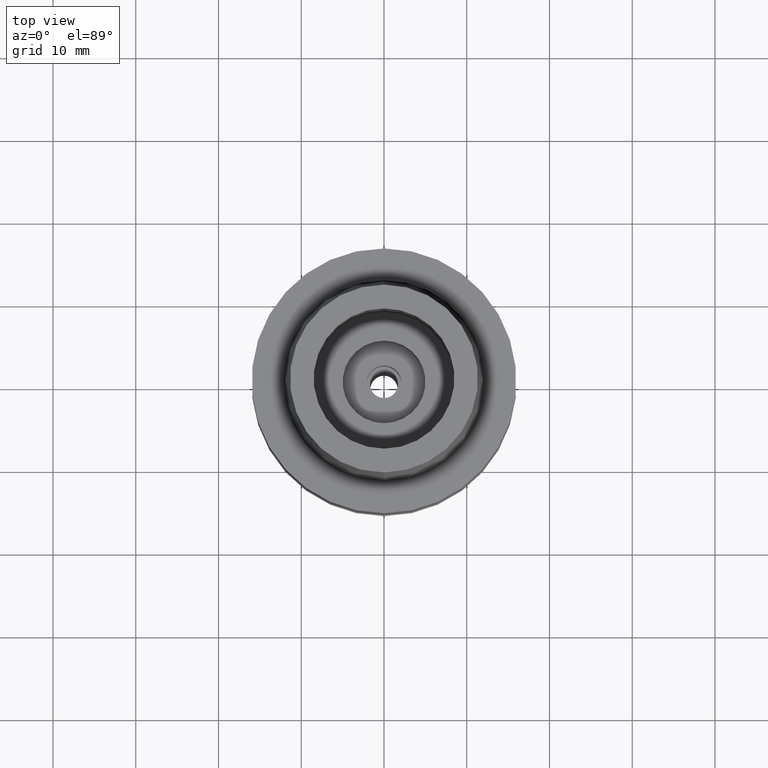
[diagram: clean part render]
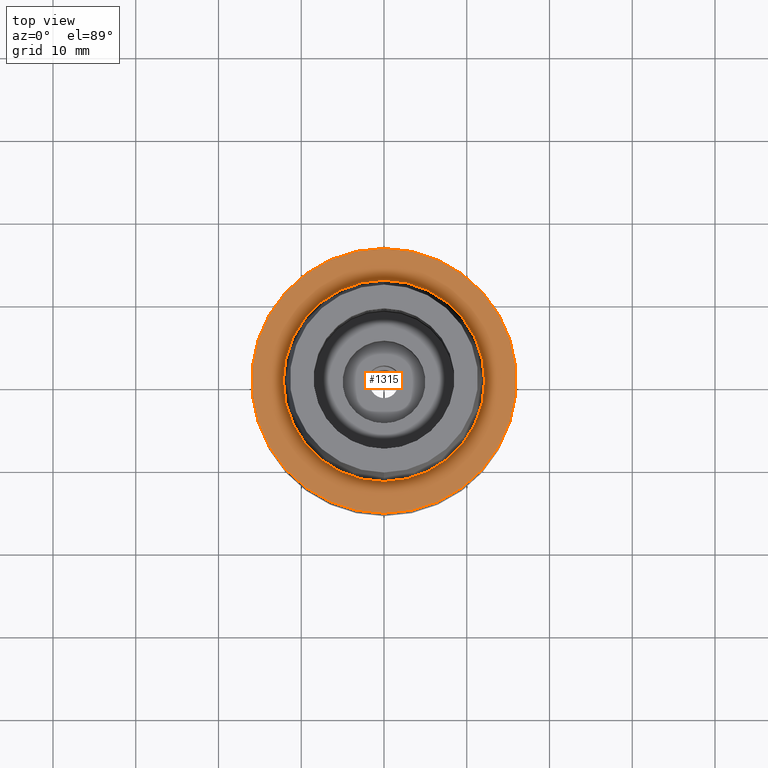
[diagram: same view with one face highlighted and labeled with its STEP entity id]
A machine part, top view. The second image highlights one B-rep face of the part: STEP entity #1315.
In plain terms, the highlighted planar face has unit normal (0, 0, -1).
Its self-contained STEP definition (entity closure, byte-faithful):
#14 = DIRECTION ( 'NONE',  ( 0.0000000000000000000, -1.000000000000000000, 0.0000000000000000000 ) ) ;
#77 = ORIENTED_EDGE ( 'NONE', *, *, #559, .F. ) ;
#217 = EDGE_CURVE ( 'NONE', #505, #504, #2226, .T. ) ;
#381 = CARTESIAN_POINT ( 'NONE',  ( 0.0000000000000000000, 0.0000000000000000000, 0.0000000000000000000 ) ) ;
#478 = DIRECTION ( 'NONE',  ( 0.0000000000000000000, 0.0000000000000000000, -1.000000000000000000 ) ) ;
#504 = VERTEX_POINT ( 'NONE', #2599 ) ;
#505 = VERTEX_POINT ( 'NONE', #1981 ) ;
#513 = AXIS2_PLACEMENT_3D ( 'NONE', #1618, #1786, #1177 ) ;
#559 = EDGE_CURVE ( 'NONE', #1244, #661, #1440, .T. ) ;
#579 = AXIS2_PLACEMENT_3D ( 'NONE', #381, #1865, #827 ) ;
#661 = VERTEX_POINT ( 'NONE', #2321 ) ;
#690 = CARTESIAN_POINT ( 'NONE',  ( 0.0000000000000000000, 0.0000000000000000000, 0.0000000000000000000 ) ) ;
#759 = ORIENTED_EDGE ( 'NONE', *, *, #217, .F. ) ;
#827 = DIRECTION ( 'NONE',  ( 0.0000000000000000000, -1.000000000000000000, 0.0000000000000000000 ) ) ;
#900 = DIRECTION ( 'NONE',  ( 0.0000000000000000000, 0.0000000000000000000, 1.000000000000000000 ) ) ;
#1052 = CARTESIAN_POINT ( 'NONE',  ( 0.0000000000000000000, -16.00000000000000000, 0.0000000000000000000 ) ) ;
#1113 = CIRCLE ( 'NONE', #2376, 12.15999970738999991 ) ;
#1172 = DIRECTION ( 'NONE',  ( 0.0000000000000000000, 1.000000000000000000, 0.0000000000000000000 ) ) ;
#1177 = DIRECTION ( 'NONE',  ( 0.0000000000000000000, 1.000000000000000000, 0.0000000000000000000 ) ) ;
#1211 = ORIENTED_EDGE ( 'NONE', *, *, #1657, .F. ) ;
#1244 = VERTEX_POINT ( 'NONE', #1052 ) ;
#1289 = DIRECTION ( 'NONE',  ( 0.0000000000000000000, 0.0000000000000000000, -1.000000000000000000 ) ) ;
#1315 = ADVANCED_FACE ( 'NONE', ( #1435, #2467 ), #2264, .F. ) ;
#1435 = FACE_OUTER_BOUND ( 'NONE', #2215, .T. ) ;
#1440 = CIRCLE ( 'NONE', #2222, 16.00000000000000000 ) ;
#1596 = CIRCLE ( 'NONE', #1773, 16.00000000000000000 ) ;
#1618 = CARTESIAN_POINT ( 'NONE',  ( 0.0000000000000000000, 0.0000000000000000000, 1.989519660127999812E-13 ) ) ;
#1657 = EDGE_CURVE ( 'NONE', #661, #1244, #1596, .T. ) ;
#1729 = EDGE_LOOP ( 'NONE', ( #759, #2172 ) ) ;
#1773 = AXIS2_PLACEMENT_3D ( 'NONE', #1983, #478, #1172 ) ;
#1786 = DIRECTION ( 'NONE',  ( 0.0000000000000000000, 0.0000000000000000000, 1.000000000000000000 ) ) ;
#1865 = DIRECTION ( 'NONE',  ( 0.0000000000000000000, 0.0000000000000000000, -1.000000000000000000 ) ) ;
#1902 = DIRECTION ( 'NONE',  ( 0.0000000000000000000, -1.000000000000000000, 0.0000000000000000000 ) ) ;
#1981 = CARTESIAN_POINT ( 'NONE',  ( 0.0000000000000000000, 12.15999970738999991, 3.907985046680999726E-14 ) ) ;
#1983 = CARTESIAN_POINT ( 'NONE',  ( 0.0000000000000000000, 0.0000000000000000000, 0.0000000000000000000 ) ) ;
#2134 = CARTESIAN_POINT ( 'NONE',  ( 0.0000000000000000000, 0.0000000000000000000, 1.989519660127999812E-13 ) ) ;
#2172 = ORIENTED_EDGE ( 'NONE', *, *, #2265, .F. ) ;
#2215 = EDGE_LOOP ( 'NONE', ( #1211, #77 ) ) ;
#2222 = AXIS2_PLACEMENT_3D ( 'NONE', #690, #1289, #1902 ) ;
#2226 = CIRCLE ( 'NONE', #513, 12.15999970738999991 ) ;
#2264 = PLANE ( 'NONE',  #579 ) ;
#2265 = EDGE_CURVE ( 'NONE', #504, #505, #1113, .T. ) ;
#2321 = CARTESIAN_POINT ( 'NONE',  ( 0.0000000000000000000, 16.00000000000000000, 0.0000000000000000000 ) ) ;
#2376 = AXIS2_PLACEMENT_3D ( 'NONE', #2134, #900, #14 ) ;
#2467 = FACE_BOUND ( 'NONE', #1729, .T. ) ;
#2599 = CARTESIAN_POINT ( 'NONE',  ( 0.0000000000000000000, -12.15999970738999991, 1.989519660127999812E-13 ) ) ;